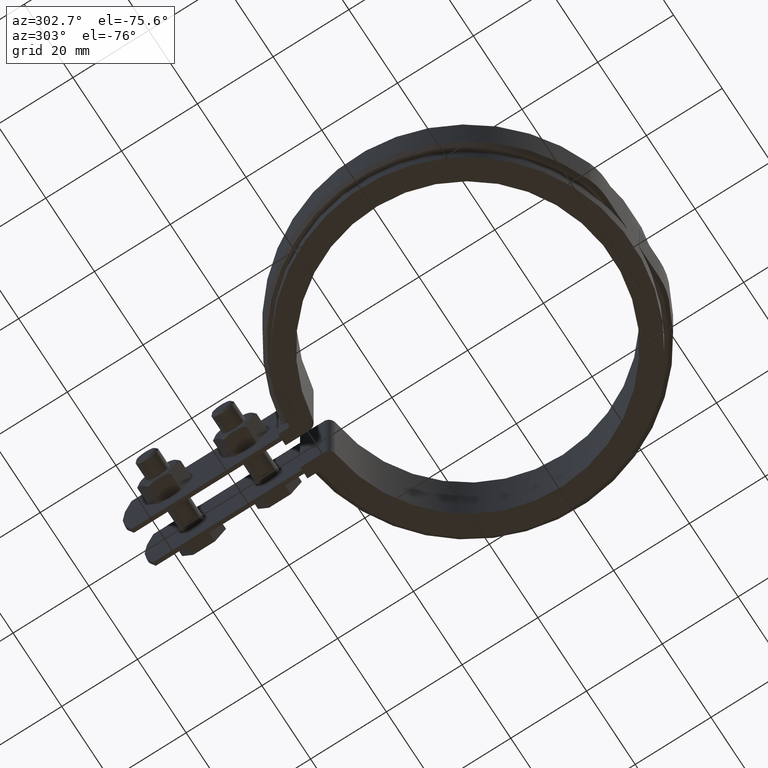
[diagram: clean part render]
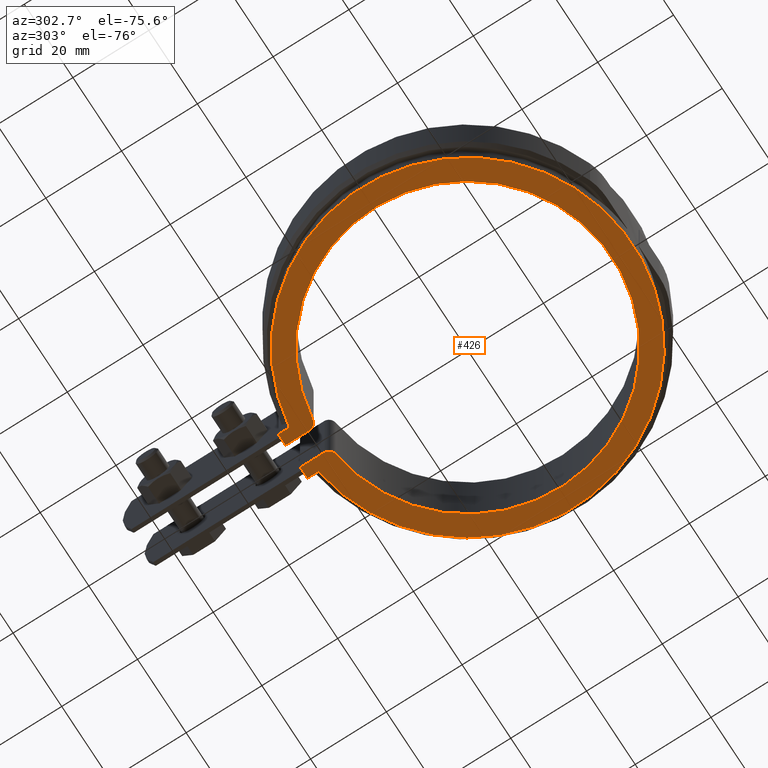
[diagram: same view with one face highlighted and labeled with its STEP entity id]
A machine part, auxiliary view. The second image highlights one B-rep face of the part: STEP entity #426.
In plain terms, the highlighted planar face has unit normal (0, 0, -1).
Its self-contained STEP definition (entity closure, byte-faithful):
#426 = ADVANCED_FACE( '', ( #746 ), #747, .T. );
#746 = FACE_OUTER_BOUND( '', #1694, .T. );
#747 = PLANE( '', #1695 );
#1694 = EDGE_LOOP( '', ( #3349, #3350, #3351, #3352, #3353, #3354, #3355, #3356, #3357, #3358 ) );
#1695 = AXIS2_PLACEMENT_3D( '', #3359, #3360, #3361 );
#3349 = ORIENTED_EDGE( '', *, *, #4095, .T. );
#3350 = ORIENTED_EDGE( '', *, *, #4277, .F. );
#3351 = ORIENTED_EDGE( '', *, *, #4280, .T. );
#3352 = ORIENTED_EDGE( '', *, *, #4116, .F. );
#3353 = ORIENTED_EDGE( '', *, *, #4281, .T. );
#3354 = ORIENTED_EDGE( '', *, *, #4278, .F. );
#3355 = ORIENTED_EDGE( '', *, *, #4092, .T. );
#3356 = ORIENTED_EDGE( '', *, *, #4186, .T. );
#3357 = ORIENTED_EDGE( '', *, *, #4282, .T. );
#3358 = ORIENTED_EDGE( '', *, *, #4214, .T. );
#3359 = CARTESIAN_POINT( '', ( 0.000000000000000, 0.000000000000000, -14.0000000000000 ) );
#3360 = DIRECTION( '', ( 0.000000000000000, 0.000000000000000, -1.00000000000000 ) );
#3361 = DIRECTION( '', ( 1.00000000000000, -6.07153216591882E-017, 0.000000000000000 ) );
#4092 = EDGE_CURVE( '', #4684, #4689, #4691, .T. );
#4095 = EDGE_CURVE( '', #4697, #4695, #4698, .T. );
#4116 = EDGE_CURVE( '', #4734, #4735, #4736, .T. );
#4186 = EDGE_CURVE( '', #4689, #4857, #4859, .T. );
#4214 = EDGE_CURVE( '', #4908, #4697, #4909, .T. );
#4277 = EDGE_CURVE( '', #4998, #4695, #5000, .T. );
#4278 = EDGE_CURVE( '', #4684, #5001, #5002, .T. );
#4280 = EDGE_CURVE( '', #4998, #4735, #5004, .T. );
#4281 = EDGE_CURVE( '', #4734, #5001, #5005, .T. );
#4282 = EDGE_CURVE( '', #4857, #4908, #5006, .T. );
#4684 = VERTEX_POINT( '', #6583 );
#4689 = VERTEX_POINT( '', #6590 );
#4691 = LINE( '', #6593, #6594 );
#4695 = VERTEX_POINT( '', #6599 );
#4697 = VERTEX_POINT( '', #6602 );
#4698 = LINE( '', #6603, #6604 );
#4734 = VERTEX_POINT( '', #6684 );
#4735 = VERTEX_POINT( '', #6685 );
#4736 = CIRCLE( '', #6686, 38.1500000000000 );
#4857 = VERTEX_POINT( '', #7359 );
#4859 = LINE( '', #7362, #7363 );
#4908 = VERTEX_POINT( '', #7431 );
#4909 = LINE( '', #7432, #7433 );
#4998 = VERTEX_POINT( '', #7633 );
#5000 = LINE( '', #7636, #7637 );
#5001 = VERTEX_POINT( '', #7638 );
#5002 = LINE( '', #7639, #7640 );
#5004 = CIRCLE( '', #7643, 2.00000000000000 );
#5005 = CIRCLE( '', #7644, 2.00000000000000 );
#5006 = CIRCLE( '', #7645, 43.6500000000000 );
#6583 = CARTESIAN_POINT( '', ( 3.00000000000003, 46.1500000000000, -14.0000000000000 ) );
#6590 = CARTESIAN_POINT( '', ( 6.00000000000000, 46.1500000000000, -14.0000000000000 ) );
#6593 = CARTESIAN_POINT( '', ( 4.99999999999997, 46.1500000000000, -14.0000000000000 ) );
#6594 = VECTOR( '', #8266, 1000.00000000000 );
#6599 = CARTESIAN_POINT( '', ( -3.00000000000002, 46.1500000000000, -14.0000000000000 ) );
#6602 = CARTESIAN_POINT( '', ( -6.00000000000000, 46.1500000000000, -14.0000000000000 ) );
#6603 = CARTESIAN_POINT( '', ( -6.00000000000001, 46.1500000000000, -14.0000000000000 ) );
#6604 = VECTOR( '', #8269, 1000.00000000000 );
#6684 = CARTESIAN_POINT( '', ( 4.75093399750934, 37.8530200400352, -14.0000000000000 ) );
#6685 = CARTESIAN_POINT( '', ( -4.75093399750936, 37.8530200400352, -14.0000000000000 ) );
#6686 = AXIS2_PLACEMENT_3D( '', #8295, #8296, #8297 );
#7359 = CARTESIAN_POINT( '', ( 6.00000000000000, 43.2356623633777, -14.0000000000000 ) );
#7362 = CARTESIAN_POINT( '', ( 6.00000000000000, 46.1500000000000, -14.0000000000000 ) );
#7363 = VECTOR( '', #8359, 1000.00000000000 );
#7431 = CARTESIAN_POINT( '', ( -6.00000000000004, 43.2356623633777, -14.0000000000000 ) );
#7432 = CARTESIAN_POINT( '', ( -6.00000000000000, 43.2356623633778, -14.0000000000000 ) );
#7433 = VECTOR( '', #8406, 1000.00000000000 );
#7633 = CARTESIAN_POINT( '', ( -3.00000000000002, 39.8374509726714, -14.0000000000000 ) );
#7636 = CARTESIAN_POINT( '', ( -3.00000000000002, 38.0318616425754, -14.0000000000000 ) );
#7637 = VECTOR( '', #8507, 1000.00000000000 );
#7638 = CARTESIAN_POINT( '', ( 3.00000000000000, 39.8374509726714, -14.0000000000000 ) );
#7639 = CARTESIAN_POINT( '', ( 3.00000000000000, 46.1500000000000, -14.0000000000000 ) );
#7640 = VECTOR( '', #8508, 1000.00000000000 );
#7643 = AXIS2_PLACEMENT_3D( '', #8510, #8511, #8512 );
#7644 = AXIS2_PLACEMENT_3D( '', #8513, #8514, #8515 );
#7645 = AXIS2_PLACEMENT_3D( '', #8516, #8517, #8518 );
#8266 = DIRECTION( '', ( 1.00000000000000, 0.000000000000000, 0.000000000000000 ) );
#8269 = DIRECTION( '', ( 1.00000000000000, 0.000000000000000, 0.000000000000000 ) );
#8295 = CARTESIAN_POINT( '', ( 0.000000000000000, 0.000000000000000, -14.0000000000000 ) );
#8296 = DIRECTION( '', ( 0.000000000000000, 0.000000000000000, -1.00000000000000 ) );
#8297 = DIRECTION( '', ( 1.00000000000000, -6.07153216591882E-017, 0.000000000000000 ) );
#8359 = DIRECTION( '', ( -6.07153216591882E-017, -1.00000000000000, 0.000000000000000 ) );
#8406 = DIRECTION( '', ( 6.07153216591882E-017, 1.00000000000000, 0.000000000000000 ) );
#8507 = DIRECTION( '', ( 6.07153216591882E-017, 1.00000000000000, 0.000000000000000 ) );
#8508 = DIRECTION( '', ( -6.07153216591882E-017, -1.00000000000000, 0.000000000000000 ) );
#8510 = CARTESIAN_POINT( '', ( -5.00000000000002, 39.8374509726714, -14.0000000000000 ) );
#8511 = DIRECTION( '', ( 0.000000000000000, 0.000000000000000, -1.00000000000000 ) );
#8512 = DIRECTION( '', ( -1.00000000000000, 0.000000000000000, 0.000000000000000 ) );
#8513 = CARTESIAN_POINT( '', ( 5.00000000000000, 39.8374509726714, -14.0000000000000 ) );
#8514 = DIRECTION( '', ( 0.000000000000000, 0.000000000000000, -1.00000000000000 ) );
#8515 = DIRECTION( '', ( -1.00000000000000, 0.000000000000000, 0.000000000000000 ) );
#8516 = CARTESIAN_POINT( '', ( 0.000000000000000, 0.000000000000000, -14.0000000000000 ) );
#8517 = DIRECTION( '', ( 0.000000000000000, 0.000000000000000, -1.00000000000000 ) );
#8518 = DIRECTION( '', ( 1.00000000000000, -6.07153216591882E-017, 0.000000000000000 ) );